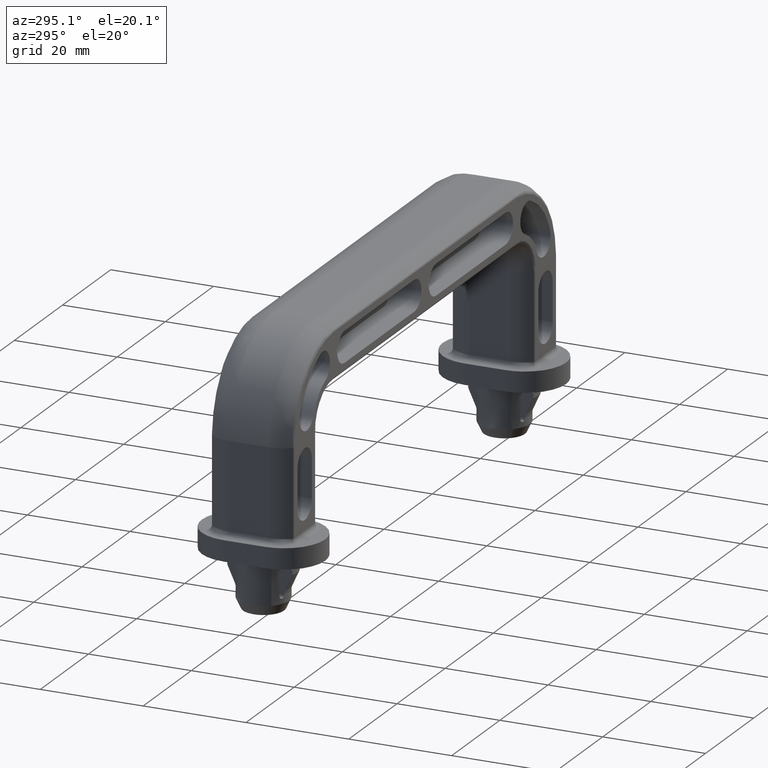
[diagram: clean part render]
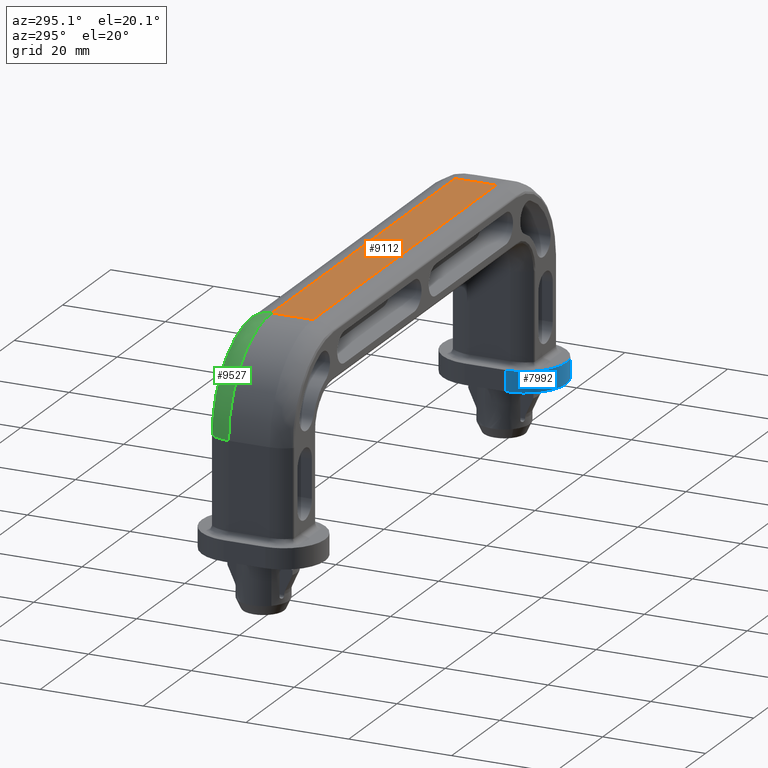
[diagram: same view with three faces highlighted in distinct colors, each labeled with its STEP entity id]
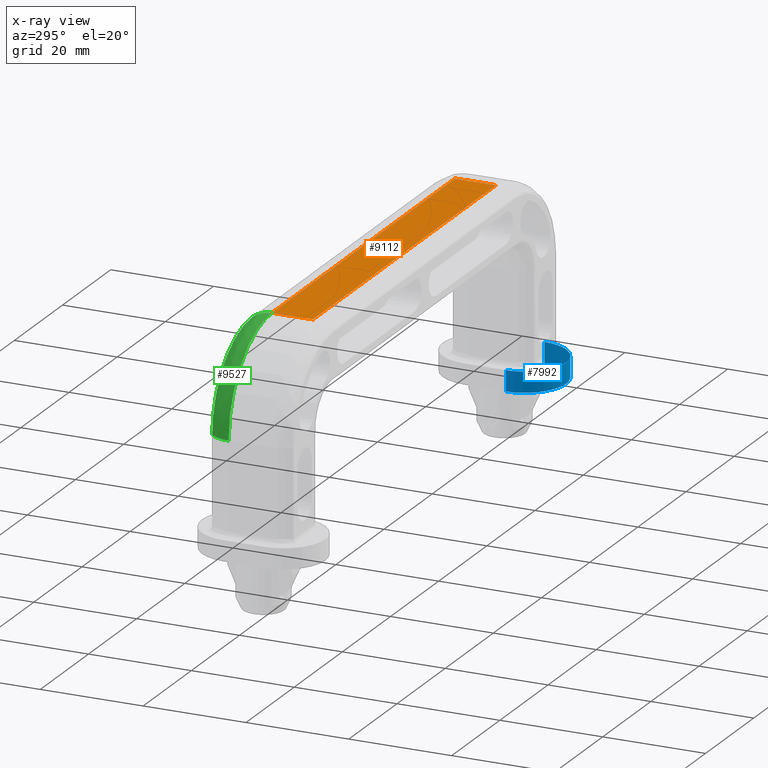
[diagram: x-ray of the same camera — body ghosted, the three highlighted faces saturated]
A machine part, auxiliary view with three faces highlighted in distinct colors.
The next image is the same camera in x-ray (body ghosted, the three faces saturated) — at least one of them is partly hidden behind the body in this view.
Their STEP definitions:

[orange] entity #9112 — the highlighted face is a freeform B-spline surface patch.
#8607=CARTESIAN_POINT('',(38.000300000000003,4.0,50.600000000000001));
#8608=VERTEX_POINT('',#8607);
#8625=CARTESIAN_POINT('',(38.000300000000003,-4.000000000000085,50.600000000000001));
#8626=VERTEX_POINT('',#8625);
#8627=CARTESIAN_POINT('',(38.000300000000003,4.0,50.600000000000001));
#8628=CARTESIAN_POINT('',(38.000300000000003,-4.000000000000085,50.600000000000001));
#8629=QUASI_UNIFORM_CURVE('',1,(#8627,#8628),.UNSPECIFIED.,.F.,.U.);
#8630=EDGE_CURVE('',#8608,#8626,#8629,.T.);
#9085=CARTESIAN_POINT('',(-41.796214837696667,-4.399599984494536,50.600000000000001));
#9086=CARTESIAN_POINT('',(41.796516876183581,-4.399599984494536,50.599999999999987));
#9087=CARTESIAN_POINT('',(-41.796214837696667,4.399600199071173,50.599999999999987));
#9088=CARTESIAN_POINT('',(41.796516876183581,4.399600199071173,50.599999999999987));
#9089=B_SPLINE_SURFACE_WITH_KNOTS('',1,1,((#9085,#9087),(#9086,#9088)),.UNSPECIFIED.,.F.,.F.,.U.,(2,2),(2,2),(0.0,83.592731713880255),(0.0,8.799200183565709),.UNSPECIFIED.);
#9090=CARTESIAN_POINT('',(-38.0,-4.000000000000085,50.600000000000001));
#9091=VERTEX_POINT('',#9090);
#9092=CARTESIAN_POINT('',(-38.0,-4.000000000000085,50.600000000000001));
#9093=CARTESIAN_POINT('',(38.000300000000003,-4.000000000000085,50.600000000000001));
#9094=QUASI_UNIFORM_CURVE('',1,(#9092,#9093),.UNSPECIFIED.,.F.,.U.);
#9095=EDGE_CURVE('',#9091,#8626,#9094,.T.);
#9096=ORIENTED_EDGE('',*,*,#9095,.T.);
#9097=ORIENTED_EDGE('',*,*,#8630,.F.);
#9098=CARTESIAN_POINT('',(-38.0,4.0,50.600000000000001));
#9099=VERTEX_POINT('',#9098);
#9100=CARTESIAN_POINT('',(-38.0,4.0,50.600000000000001));
#9101=CARTESIAN_POINT('',(38.000300000000003,4.0,50.600000000000001));
#9102=QUASI_UNIFORM_CURVE('',1,(#9100,#9101),.UNSPECIFIED.,.F.,.U.);
#9103=EDGE_CURVE('',#9099,#8608,#9102,.T.);
#9104=ORIENTED_EDGE('',*,*,#9103,.F.);
#9105=CARTESIAN_POINT('',(-38.0,4.0,50.600000000000001));
#9106=CARTESIAN_POINT('',(-38.0,-4.000000000000085,50.600000000000001));
#9107=QUASI_UNIFORM_CURVE('',1,(#9105,#9106),.UNSPECIFIED.,.F.,.U.);
#9108=EDGE_CURVE('',#9099,#9091,#9107,.T.);
#9109=ORIENTED_EDGE('',*,*,#9108,.T.);
#9110=EDGE_LOOP('',(#9096,#9097,#9104,#9109));
#9111=FACE_OUTER_BOUND('',#9110,.T.);
#9112=ADVANCED_FACE('',(#9111),#9089,.T.);

[blue] entity #7992 — the highlighted face is a freeform B-spline surface patch.
#7730=CARTESIAN_POINT('',(50.000298912494642,-11.999999999999931,14.600000000000000));
#7731=VERTEX_POINT('',#7730);
#7732=CARTESIAN_POINT('',(42.000300000000003,-4.0,14.600000000000000));
#7733=VERTEX_POINT('',#7732);
#7734=CARTESIAN_POINT('',(50.000298912494642,-11.999999999999931,14.600000000000000));
#7735=CARTESIAN_POINT('',(49.280319270743263,-12.000272795901139,14.599999999999991));
#7736=CARTESIAN_POINT('',(48.266001758981517,-11.862075900568479,14.600000000000019));
#7737=CARTESIAN_POINT('',(46.682022368084972,-11.328090776459421,14.600000000000041));
#7738=CARTESIAN_POINT('',(45.439995393762409,-10.644455582615400,14.599999999999991));
#7739=CARTESIAN_POINT('',(44.171581692401283,-9.550225835773267,14.600000000000019));
#7740=CARTESIAN_POINT('',(43.335111946265592,-8.491854880018163,14.599999999999969));
#7741=CARTESIAN_POINT('',(42.623660907587642,-7.199277032858758,14.600000000000019));
#7742=CARTESIAN_POINT('',(42.130979656323262,-5.767119245221601,14.600000000000099));
#7743=CARTESIAN_POINT('',(42.000202017601048,-4.589051620294609,14.599999999999991));
#7744=CARTESIAN_POINT('',(42.000300000000003,-4.0,14.600000000000000));
#7745=B_SPLINE_CURVE_WITH_KNOTS('',3,(#7734,#7735,#7736,#7737,#7738,#7739,#7740,#7741,#7742,#7743,#7744),.UNSPECIFIED.,.F.,.U.,(4,1,1,1,1,1,1,1,4),(0.000000102723220,2.159842183834760,3.043436772581392,5.006959099394127,6.381365976176192,8.050360449557134,9.032135338556868,10.799300577179460,12.566448850065321),.UNSPECIFIED.);
#7746=EDGE_CURVE('',#7731,#7733,#7745,.T.);
#7748=CARTESIAN_POINT('',(58.000300000000003,-4.0,14.600000000000000));
#7749=VERTEX_POINT('',#7748);
#7750=CARTESIAN_POINT('',(58.000300000000003,-4.0,14.600000000000000));
#7751=CARTESIAN_POINT('',(58.000528800040087,-4.719969355043171,14.600000000000041));
#7752=CARTESIAN_POINT('',(57.840160161514689,-5.897928995572801,14.600000000000000));
#7753=CARTESIAN_POINT('',(57.279311453845587,-7.406525831014546,14.599999999999969));
#7754=CARTESIAN_POINT('',(56.608694216445663,-8.573584301715266,14.600000000000019));
#7755=CARTESIAN_POINT('',(55.816883386678292,-9.538390715649841,14.600000000000000));
#7756=CARTESIAN_POINT('',(54.863817007663592,-10.391596358613601,14.600000000000000));
#7757=CARTESIAN_POINT('',(53.707507690913147,-11.143942029229340,14.600000000000010));
#7758=CARTESIAN_POINT('',(52.061830259118693,-11.813834078986520,14.599999999999980));
#7759=CARTESIAN_POINT('',(50.753004004140010,-12.000309314024800,14.600000000000010));
#7760=CARTESIAN_POINT('',(50.000298912494642,-11.999999999999931,14.600000000000000));
#7761=B_SPLINE_CURVE_WITH_KNOTS('',3,(#7750,#7751,#7752,#7753,#7754,#7755,#7756,#7757,#7758,#7759,#7760),.UNSPECIFIED.,.F.,.U.,(4,1,1,1,1,1,1,1,4),(0.000000102353637,2.159842394210122,3.534316671344506,4.810622093881651,6.185086150549822,7.264945981415648,8.639432719255375,10.308420356965620,12.566450075944919),.UNSPECIFIED.);
#7762=EDGE_CURVE('',#7749,#7731,#7761,.T.);
#7833=CARTESIAN_POINT('',(58.000300000000003,-4.0,10.600000000000000));
#7834=VERTEX_POINT('',#7833);
#7846=CARTESIAN_POINT('',(58.000300000000003,-4.0,14.600000000000000));
#7847=CARTESIAN_POINT('',(58.000300000000003,-4.0,10.600000000000000));
#7848=QUASI_UNIFORM_CURVE('',1,(#7846,#7847),.UNSPECIFIED.,.F.,.U.);
#7849=EDGE_CURVE('',#7749,#7834,#7848,.T.);
#7920=CARTESIAN_POINT('',(42.000300000000003,-4.0,10.600000000000000));
#7921=VERTEX_POINT('',#7920);
#7927=CARTESIAN_POINT('',(42.000300000000003,-4.0,14.600000000000000));
#7928=CARTESIAN_POINT('',(42.000300000000003,-4.0,10.600000000000000));
#7929=QUASI_UNIFORM_CURVE('',1,(#7927,#7928),.UNSPECIFIED.,.F.,.U.);
#7930=EDGE_CURVE('',#7733,#7921,#7929,.T.);
#7937=CARTESIAN_POINT('',(42.003041400195542,-3.790584413537003,14.699999999999999));
#7938=CARTESIAN_POINT('',(42.003041400195542,-3.790584413537003,10.497500000000000));
#7939=CARTESIAN_POINT('',(41.782363417256775,-12.217936582743192,14.699999999999994));
#7940=CARTESIAN_POINT('',(41.782363417256775,-12.217936582743192,10.497499999999999));
#7941=CARTESIAN_POINT('',(50.209715586462963,-11.997258599804461,14.699999999999999));
#7942=CARTESIAN_POINT('',(50.209715586462963,-11.997258599804461,10.497500000000000));
#7943=CARTESIAN_POINT('',(58.637067755669143,-11.776580616865729,14.699999999999994));
#7944=CARTESIAN_POINT('',(58.637067755669143,-11.776580616865729,10.497499999999999));
#7945=CARTESIAN_POINT('',(57.975638669865013,-3.372327234177263,14.699999999999999));
#7946=CARTESIAN_POINT('',(57.975638669865013,-3.372327234177263,10.497500000000000));
#7954=(BOUNDED_SURFACE()B_SPLINE_SURFACE(1,2,((#7937,#7939,#7941,#7943,#7945),(#7938,#7940,#7942,#7944,#7946)),.UNSPECIFIED.,.F.,.F.,.U.)B_SPLINE_SURFACE_WITH_KNOTS((2,2),(3,2,3),(0.0,4.202500000000001),(0.0,13.748284990938750,27.496569981877499),.UNSPECIFIED.)GEOMETRIC_REPRESENTATION_ITEM()RATIONAL_B_SPLINE_SURFACE(((1.0,0.688354575693754,1.0,0.688354575693754,1.0),(1.0,0.688354575693754,1.0,0.688354575693754,1.0)))REPRESENTATION_ITEM('')SURFACE());
#7955=CARTESIAN_POINT('',(50.000298912494642,-11.999999999999931,10.600000000000000));
#7956=VERTEX_POINT('',#7955);
#7957=CARTESIAN_POINT('',(50.000298912494642,-11.999999999999931,10.600000000000000));
#7958=CARTESIAN_POINT('',(49.149378628019747,-12.000479881946500,10.600000000000010));
#7959=CARTESIAN_POINT('',(47.971591391132442,-11.810274850231400,10.599999999999980));
#7960=CARTESIAN_POINT('',(46.479928739295907,-11.213543163459770,10.600000000000030));
#7961=CARTESIAN_POINT('',(45.369795788503723,-10.575713638955250,10.600000000000010));
#7962=CARTESIAN_POINT('',(44.212356077153252,-9.601891635194928,10.599999999999991));
#7963=CARTESIAN_POINT('',(43.335118038106167,-8.491846923316148,10.599999999999980));
#7964=CARTESIAN_POINT('',(42.623658854327950,-7.199279649466724,10.600000000000019));
#7965=CARTESIAN_POINT('',(42.130980351260277,-5.767118506531872,10.600000000000071));
#7966=CARTESIAN_POINT('',(42.000201901080722,-4.589051757680585,10.600000000000000));
#7967=CARTESIAN_POINT('',(42.000300000000003,-4.0,10.600000000000000));
#7968=B_SPLINE_CURVE_WITH_KNOTS('',3,(#7957,#7958,#7959,#7960,#7961,#7962,#7963,#7964,#7965,#7966,#7967),.UNSPECIFIED.,.F.,.U.,(4,1,1,1,1,1,1,1,4),(0.000000102723220,2.552550442825540,3.534316326767005,4.810621624793161,6.381365976176192,8.050360449557134,9.032135338556868,10.799300577179460,12.566448850065321),.UNSPECIFIED.);
#7969=EDGE_CURVE('',#7956,#7921,#7968,.T.);
#7970=ORIENTED_EDGE('',*,*,#7969,.F.);
#7971=CARTESIAN_POINT('',(58.000300000000003,-4.0,10.600000000000000));
#7972=CARTESIAN_POINT('',(58.000337008117441,-4.458141692263662,10.600000000000019));
#7973=CARTESIAN_POINT('',(57.921374321481380,-5.374425295528702,10.599999999999991));
#7974=CARTESIAN_POINT('',(57.569821365752972,-6.708414517074447,10.600000000000030));
#7975=CARTESIAN_POINT('',(56.967973502885151,-8.022385416588591,10.599999999999950));
#7976=CARTESIAN_POINT('',(56.097038179448312,-9.259090001831208,10.600000000000030));
#7977=CARTESIAN_POINT('',(55.001500824524811,-10.302077531540711,10.600000000000000));
#7978=CARTESIAN_POINT('',(53.927736314600978,-11.000579697817679,10.600000000000000));
#7979=CARTESIAN_POINT('',(52.739191353086909,-11.553885876040360,10.600000000000010));
#7980=CARTESIAN_POINT('',(51.472926780417893,-11.912666873554420,10.600000000000010));
#7981=CARTESIAN_POINT('',(50.458445971766558,-12.000027753983931,10.600000000000000));
#7982=CARTESIAN_POINT('',(50.000298912494642,-11.999999999999931,10.600000000000000));
#7983=B_SPLINE_CURVE_WITH_KNOTS('',3,(#7971,#7972,#7973,#7974,#7975,#7976,#7977,#7978,#7979,#7980,#7981,#7982),.UNSPECIFIED.,.F.,.U.,(4,1,1,1,1,1,1,1,1,4),(0.000000102353637,1.374426455378581,2.748911632380908,4.123383774803031,5.694214840958202,7.264945981415648,8.639432719255375,9.523014957408295,11.191995809284240,12.566450075944919),.UNSPECIFIED.);
#7984=EDGE_CURVE('',#7834,#7956,#7983,.T.);
#7985=ORIENTED_EDGE('',*,*,#7984,.F.);
#7986=ORIENTED_EDGE('',*,*,#7849,.F.);
#7987=ORIENTED_EDGE('',*,*,#7762,.T.);
#7988=ORIENTED_EDGE('',*,*,#7746,.T.);
#7989=ORIENTED_EDGE('',*,*,#7930,.T.);
#7990=EDGE_LOOP('',(#7970,#7985,#7986,#7987,#7988,#7989));
#7991=FACE_OUTER_BOUND('',#7990,.T.);
#7992=ADVANCED_FACE('',(#7991),#7954,.T.);

[green] entity #9527 — the highlighted face is a freeform B-spline surface patch.
#9098=CARTESIAN_POINT('',(-38.0,4.0,50.600000000000001));
#9099=VERTEX_POINT('',#9098);
#9129=CARTESIAN_POINT('',(-38.0,7.818181818181810,49.228335295039201));
#9130=VERTEX_POINT('',#9129);
#9136=CARTESIAN_POINT('',(-38.0,7.818181818181810,49.228335295039201));
#9137=CARTESIAN_POINT('',(-37.999999999999829,7.402592469341433,49.571423760742000));
#9138=CARTESIAN_POINT('',(-38.000000000000220,6.552081476519003,50.098438736904463));
#9139=CARTESIAN_POINT('',(-38.000000000000277,5.228660545929357,50.518234620842030));
#9140=CARTESIAN_POINT('',(-37.999999999999709,4.387999310685137,50.600032721237717));
#9141=CARTESIAN_POINT('',(-38.0,4.0,50.600000000000001));
#9142=B_SPLINE_CURVE_WITH_KNOTS('',3,(#9136,#9137,#9138,#9139,#9140,#9141),.UNSPECIFIED.,.F.,.U.,(4,1,1,4),(0.000000024992121,1.616674775766316,2.974667018248590,4.138670034823980),.UNSPECIFIED.);
#9143=EDGE_CURVE('',#9130,#9099,#9142,.T.);
#9432=CARTESIAN_POINT('',(-56.0,4.0,32.599999999999987));
#9433=VERTEX_POINT('',#9432);
#9434=CARTESIAN_POINT('',(-56.0,4.0,32.599999999999987));
#9435=CARTESIAN_POINT('',(-56.000154834430070,4.000000000000001,33.741288203216570));
#9436=CARTESIAN_POINT('',(-55.841864688912558,4.0,35.397918268169079));
#9437=CARTESIAN_POINT('',(-55.254392497587617,4.000000000000001,37.871748289416658));
#9438=CARTESIAN_POINT('',(-54.520723853186752,3.999999999999993,39.883228199267052));
#9439=CARTESIAN_POINT('',(-53.403513447545912,4.000000000000022,42.004556642108177));
#9440=CARTESIAN_POINT('',(-52.197940352045073,3.999999999999960,43.727511377258082));
#9441=CARTESIAN_POINT('',(-50.684124271752857,4.000000000000054,45.439529519246662));
#9442=CARTESIAN_POINT('',(-48.742677758743163,3.999999999999919,47.145782313149603));
#9443=CARTESIAN_POINT('',(-46.355675882135500,4.000000000000109,48.626680340728747));
#9444=CARTESIAN_POINT('',(-43.907393903939230,3.999999999999846,49.658373330077993));
#9445=CARTESIAN_POINT('',(-41.202880874057541,4.000000000000231,50.397906907789107));
#9446=CARTESIAN_POINT('',(-39.214924200326067,3.999999999999797,50.600186536424992));
#9447=CARTESIAN_POINT('',(-38.0,4.0,50.600000000000001));
#9448=B_SPLINE_CURVE_WITH_KNOTS('',3,(#9434,#9435,#9436,#9437,#9438,#9439,#9440,#9441,#9442,#9443,#9444,#9445,#9446,#9447),.UNSPECIFIED.,.F.,.U.,(4,1,1,1,1,1,1,1,1,1,1,4),(0.000000075051066,3.423823477376896,4.970091978739195,7.620832632057418,9.829775337666888,12.149179944182761,13.916322140465679,16.677452661238160,19.880414551923529,22.310257053860301,24.629649478974510,28.274378236533849),.UNSPECIFIED.);
#9449=EDGE_CURVE('',#9433,#9099,#9448,.T.);
#9478=CARTESIAN_POINT('',(-55.952793488151421,3.797794040941009,31.345200816876709));
#9479=CARTESIAN_POINT('',(-57.395634847013042,3.797794040941009,51.988370895559626));
#9480=CARTESIAN_POINT('',(-36.751925750024427,3.797794040941009,50.553262257448544));
#9481=CARTESIAN_POINT('',(-56.033024097723654,6.182906468739890,31.339593148999334));
#9482=CARTESIAN_POINT('',(-57.482313480499421,6.182906468739889,52.075017066618706));
#9483=CARTESIAN_POINT('',(-36.746348135714271,6.182906468739889,50.633494961939668));
#9484=CARTESIAN_POINT('',(-54.457152373236333,7.971684312295498,31.449737709727383));
#9485=CARTESIAN_POINT('',(-55.779791109590342,7.971684312295499,50.373132315460083));
#9486=CARTESIAN_POINT('',(-36.855902390983530,7.971684312295498,49.057582089522882));
#9494=(BOUNDED_SURFACE()B_SPLINE_SURFACE(2,2,((#9478,#9481,#9484),(#9479,#9482,#9485),(#9480,#9483,#9486)),.UNSPECIFIED.,.F.,.F.,.U.)B_SPLINE_SURFACE_WITH_KNOTS((3,3),(3,3),(0.0,32.796456933256131),(0.0,4.597765790023149),.UNSPECIFIED.)GEOMETRIC_REPRESENTATION_ITEM()RATIONAL_B_SPLINE_SURFACE(((0.855624011983952,0.795891234522108,0.857449100695301),(0.563043184524296,0.523736044037888,0.564244183731523),(0.860389817324147,0.800324329716461,0.862225071736090)))REPRESENTATION_ITEM('')SURFACE());
#9495=ORIENTED_EDGE('',*,*,#9449,.T.);
#9496=ORIENTED_EDGE('',*,*,#9143,.F.);
#9497=CARTESIAN_POINT('',(-54.628335295039200,7.818181818181819,32.599999999999987));
#9498=VERTEX_POINT('',#9497);
#9499=CARTESIAN_POINT('',(-54.628335295039200,7.818181818181819,32.599999999999987));
#9500=CARTESIAN_POINT('',(-54.628446779389769,7.818181818181817,33.620302786416332));
#9501=CARTESIAN_POINT('',(-54.446197524885442,7.818181818181843,35.592845856742613));
#9502=CARTESIAN_POINT('',(-53.763414526008049,7.818181818181773,38.060294282544163));
#9503=CARTESIAN_POINT('',(-52.884918834574499,7.818181818181865,40.092206326691283));
#9504=CARTESIAN_POINT('',(-51.849369370560403,7.818181818181839,41.894403953126933));
#9505=CARTESIAN_POINT('',(-50.579638266093021,7.818181818181779,43.542160710192917));
#9506=CARTESIAN_POINT('',(-49.115168747953547,7.818181818181873,45.015597899311622));
#9507=CARTESIAN_POINT('',(-47.465822239800559,7.818181818181818,46.335721771502307));
#9508=CARTESIAN_POINT('',(-45.677832672787723,7.818181818181710,47.399925732481762));
#9509=CARTESIAN_POINT('',(-43.648909893077722,7.818181818181846,48.284440288393903));
#9510=CARTESIAN_POINT('',(-41.196862358682878,7.818181818181813,49.011888214060043));
#9511=CARTESIAN_POINT('',(-39.190365044656787,7.818181818181791,49.228556615524887));
#9512=CARTESIAN_POINT('',(-38.0,7.818181818181810,49.228335295039201));
#9513=B_SPLINE_CURVE_WITH_KNOTS('',3,(#9499,#9500,#9501,#9502,#9503,#9504,#9505,#9506,#9507,#9508,#9509,#9510,#9511,#9512),.UNSPECIFIED.,.F.,.U.,(4,1,1,1,1,1,1,1,1,1,1,4),(0.000000077990510,3.060889564934346,5.917756382778652,7.652284693687584,9.692907180312307,12.141623139770431,13.876083422673060,15.916704888756970,18.467490858879788,20.099981851998361,22.548726913900250,26.119768976436461),.UNSPECIFIED.);
#9514=EDGE_CURVE('',#9498,#9130,#9513,.T.);
#9515=ORIENTED_EDGE('',*,*,#9514,.F.);
#9516=CARTESIAN_POINT('',(-54.628335295039200,7.818181818181819,32.599999999999987));
#9517=CARTESIAN_POINT('',(-54.834099983871099,7.568775551073160,32.600000000000037));
#9518=CARTESIAN_POINT('',(-55.242300286341560,6.983398735228430,32.599999999999973));
#9519=CARTESIAN_POINT('',(-55.821654438314930,5.724200511279664,32.600000000000009));
#9520=CARTESIAN_POINT('',(-56.000431915805812,4.668291085905528,32.600000000000072));
#9521=CARTESIAN_POINT('',(-56.0,4.0,32.599999999999987));
#9522=B_SPLINE_CURVE_WITH_KNOTS('',3,(#9516,#9517,#9518,#9519,#9520,#9521),.UNSPECIFIED.,.F.,.U.,(4,1,1,4),(0.000000024991547,0.970000087509095,2.133982491969078,4.138670034823986),.UNSPECIFIED.);
#9523=EDGE_CURVE('',#9498,#9433,#9522,.T.);
#9524=ORIENTED_EDGE('',*,*,#9523,.T.);
#9525=EDGE_LOOP('',(#9495,#9496,#9515,#9524));
#9526=FACE_OUTER_BOUND('',#9525,.T.);
#9527=ADVANCED_FACE('',(#9526),#9494,.T.);